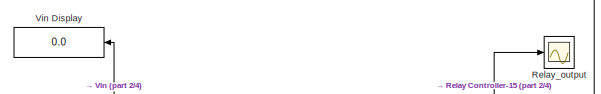
[diagram: root canvas - part 1/4, top center region]
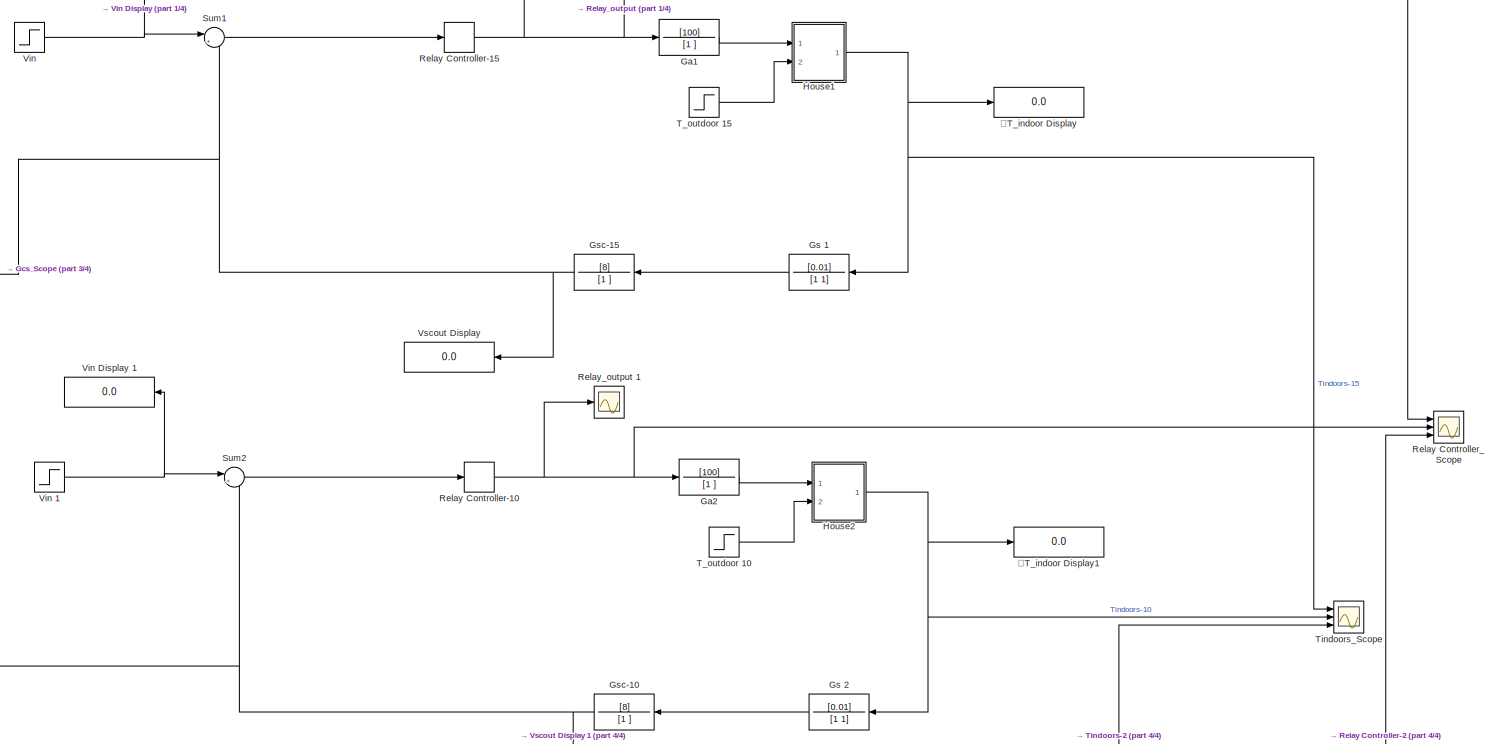
[diagram: root canvas - part 2/4, central region]
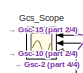
[diagram: root canvas - part 3/4, top left region]
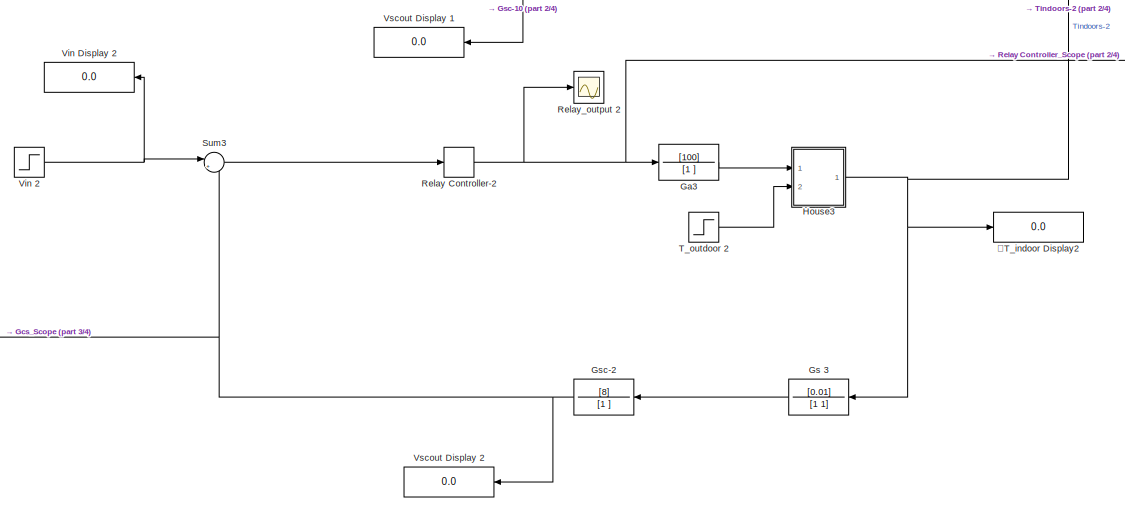
[diagram: root canvas - part 4/4, bottom center region]
MODEL slx_197cc230501b
KIND model
CONFIG AbsTol = auto
CONFIG EnableMultiTasking = off
CONFIG FixedStep = auto
CONFIG MaxStep = auto
CONFIG MinStep = auto
CONFIG RelTol = 1e-3
CONFIG SampleTimeConstraint = Unconstrained
CONFIG Solver = VariableStepAuto
CONFIG SolverName = VariableStepAuto
CONFIG StartTime = 0.0
CONFIG StopTime = 40
BLOCK [TransferFcn] Ga1
  Denominator = [1 ]
  Numerator = [100]
BLOCK [TransferFcn] Ga2
  Denominator = [1 ]
  Numerator = [100]
BLOCK [TransferFcn] Ga3
  Denominator = [1 ]
  Numerator = [100]
BLOCK [Scope] Gcs_Scope 
  NumInputPorts = 3
  Ports = [3]
  ScopeSpecificationString = Simulink.scopes.TimeScopeBlockCfg('CurrentConfiguration', extmgr.ConfigurationSet(extmgr.Configuration('Core','General UI',true),extmgr.Configuration('Core','Source UI',true),extmgr.Configuration('Sources','WiredSimulink',true,'DataLoggingVariableName','ScopeData4'),extmgr.Configuration('Visuals','Time Domain',true,'SerializedDisplays',{struct('MinYLimReal','-0.30216','MaxYLimReal','2.71947','YLab...<+1409ch>
BLOCK [TransferFcn] Gs 1
  Denominator = [1 1]
  Numerator = [0.01]
BLOCK [TransferFcn] Gs 2
  Denominator = [1 1]
  Numerator = [0.01]
BLOCK [TransferFcn] Gs 3
  Denominator = [1 1]
  Numerator = [0.01]
BLOCK [TransferFcn] Gsc-10
  Denominator = [1 ]
  Numerator = [8]
BLOCK [TransferFcn] Gsc-15
  Denominator = [1 ]
  Numerator = [8]
BLOCK [TransferFcn] Gsc-2
  Denominator = [1 ]
  Numerator = [8]
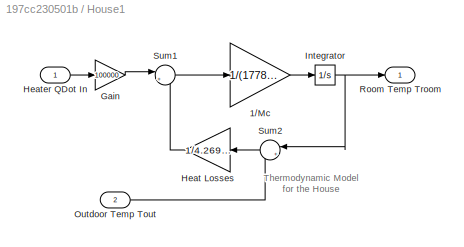
BLOCK [SubSystem] House1
  Ports = [2, 1]
  RequestExecContextInheritance = off
  Variant = off
BLOCK [Gain] House1/1//Mc
  Gain = 1/(1778.369114457651*1005.4)
BLOCK [Gain] House1/Gain
  Gain = 100000
  OutDataTypeStr = Inherit: Inherit via internal rule
  ParamDataTypeStr = Inherit: Inherit via internal rule
  SaturateOnIntegerOverflow = off
BLOCK [Gain] House1/Heat Losses
  Gain = 1/4.269756377514351e-07
BLOCK [Inport] House1/Heater QDot In
  IconDisplay = Port number
BLOCK [Integrator] House1/Integrator
  InitialCondition = 20
  Ports = [1, 1]
BLOCK [Inport] House1/Outdoor Temp Tout
  IconDisplay = Port number
  Port = 2
BLOCK [Outport] House1/Room Temp Troom
  IconDisplay = Port number
  InitialOutput = 0
BLOCK [Sum] House1/Sum1
  IconShape = round
  Inputs = |+-
  Ports = [2, 1]
BLOCK [Sum] House1/Sum2
  IconShape = round
  Inputs = |+-
  Ports = [2, 1]
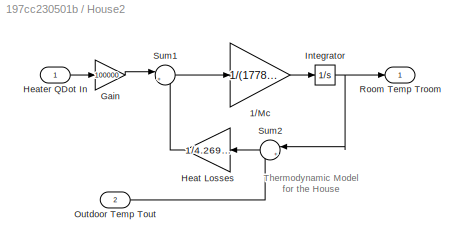
BLOCK [SubSystem] House2
  Ports = [2, 1]
  RequestExecContextInheritance = off
  Variant = off
BLOCK [Gain] House2/1//Mc
  Gain = 1/(1778.369114457651*1005.4)
BLOCK [Gain] House2/Gain
  Gain = 100000
  OutDataTypeStr = Inherit: Inherit via internal rule
  ParamDataTypeStr = Inherit: Inherit via internal rule
  SaturateOnIntegerOverflow = off
BLOCK [Gain] House2/Heat Losses
  Gain = 1/4.269756377514351e-07
BLOCK [Inport] House2/Heater QDot In
  IconDisplay = Port number
BLOCK [Integrator] House2/Integrator
  InitialCondition = 20
  Ports = [1, 1]
BLOCK [Inport] House2/Outdoor Temp Tout
  IconDisplay = Port number
  Port = 2
BLOCK [Outport] House2/Room Temp Troom
  IconDisplay = Port number
  InitialOutput = 0
BLOCK [Sum] House2/Sum1
  IconShape = round
  Inputs = |+-
  Ports = [2, 1]
BLOCK [Sum] House2/Sum2
  IconShape = round
  Inputs = |+-
  Ports = [2, 1]
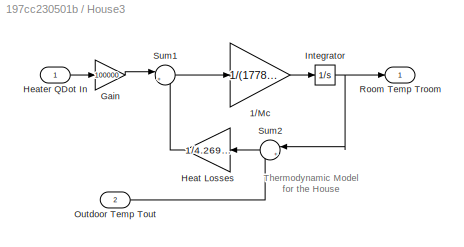
BLOCK [SubSystem] House3
  Ports = [2, 1]
  RequestExecContextInheritance = off
  Variant = off
BLOCK [Gain] House3/1//Mc
  Gain = 1/(1778.369114457651*1005.4)
BLOCK [Gain] House3/Gain
  Gain = 100000
  OutDataTypeStr = Inherit: Inherit via internal rule
  ParamDataTypeStr = Inherit: Inherit via internal rule
  SaturateOnIntegerOverflow = off
BLOCK [Gain] House3/Heat Losses
  Gain = 1/4.269756377514351e-07
BLOCK [Inport] House3/Heater QDot In
  IconDisplay = Port number
BLOCK [Integrator] House3/Integrator
  InitialCondition = 20
  Ports = [1, 1]
BLOCK [Inport] House3/Outdoor Temp Tout
  IconDisplay = Port number
  Port = 2
BLOCK [Outport] House3/Room Temp Troom
  IconDisplay = Port number
  InitialOutput = 0
BLOCK [Sum] House3/Sum1
  IconShape = round
  Inputs = |+-
  Ports = [2, 1]
BLOCK [Sum] House3/Sum2
  IconShape = round
  Inputs = |+-
  Ports = [2, 1]
BLOCK [Relay] Relay Controller-10
  InputProcessing = Elements as channels (sample based)
  OffSwitchValue = -0.001
  OnOutputValue = 10
  OnSwitchValue = 0.001
BLOCK [Relay] Relay Controller-15
  InputProcessing = Elements as channels (sample based)
  OffSwitchValue = -0.001
  OnOutputValue = 10
  OnSwitchValue = 0.001
BLOCK [Relay] Relay Controller-2
  InputProcessing = Elements as channels (sample based)
  OffSwitchValue = -0.001
  OnOutputValue = 10
  OnSwitchValue = 0.001
BLOCK [Scope] Relay Controller_Scope 
  NumInputPorts = 3
  Ports = [3]
  ScopeSpecificationString = Simulink.scopes.TimeScopeBlockCfg('CurrentConfiguration', extmgr.ConfigurationSet(extmgr.Configuration('Core','General UI',true),extmgr.Configuration('Core','Source UI',true),extmgr.Configuration('Sources','WiredSimulink',true,'DataLoggingVariableName','ScopeData2'),extmgr.Configuration('Visuals','Time Domain',true,'SerializedDisplays',{struct('MinYLimReal','-1.25','MaxYLimReal','11.25','YLabelRea...<+1434ch>
BLOCK [Scope] Relay_output 
  NumInputPorts = 1
  Ports = [1]
  ScopeSpecificationString = Simulink.scopes.TimeScopeBlockCfg('CurrentConfiguration', extmgr.ConfigurationSet(extmgr.Configuration('Core','General UI',true),extmgr.Configuration('Core','Source UI',true),extmgr.Configuration('Sources','WiredSimulink',true,'DataLoggingVariableName','ScopeData1'),extmgr.Configuration('Visuals','Time Domain',true,'SerializedDisplays',{struct('MinYLimReal','-1.25','MaxYLimReal','11.25','YLabelRea...<+1372ch>
BLOCK [Scope] Relay_output 1
  NumInputPorts = 1
  Ports = [1]
  ScopeSpecificationString = Simulink.scopes.TimeScopeBlockCfg('CurrentConfiguration', extmgr.ConfigurationSet(extmgr.Configuration('Core','General UI',true),extmgr.Configuration('Core','Source UI',true),extmgr.Configuration('Sources','WiredSimulink',true,'DataLoggingVariableName','ScopeData3'),extmgr.Configuration('Visuals','Time Domain',true,'SerializedDisplays',{struct('MinYLimReal','-1.25','MaxYLimReal','11.25','YLabelRea...<+1372ch>
BLOCK [Scope] Relay_output 2
  NumInputPorts = 1
  Ports = [1]
  ScopeSpecificationString = Simulink.scopes.TimeScopeBlockCfg('CurrentConfiguration', extmgr.ConfigurationSet(extmgr.Configuration('Core','General UI',true),extmgr.Configuration('Core','Source UI',true),extmgr.Configuration('Sources','WiredSimulink',true,'DataLoggingVariableName','ScopeData6'),extmgr.Configuration('Visuals','Time Domain',true,'SerializedDisplays',{struct('MinYLimReal','-1.25','MaxYLimReal','11.25','YLabelRea...<+1372ch>
BLOCK [Sum] Sum1
  IconShape = round
  InputSameDT = off
  Inputs = |+-
  OutDataTypeStr = Inherit: Inherit via internal rule
  Ports = [2, 1]
  SaturateOnIntegerOverflow = off
BLOCK [Sum] Sum2
  IconShape = round
  InputSameDT = off
  Inputs = |+-
  OutDataTypeStr = Inherit: Inherit via internal rule
  Ports = [2, 1]
  SaturateOnIntegerOverflow = off
BLOCK [Sum] Sum3
  IconShape = round
  InputSameDT = off
  Inputs = |+-
  OutDataTypeStr = Inherit: Inherit via internal rule
  Ports = [2, 1]
  SaturateOnIntegerOverflow = off
BLOCK [Step] T_outdoor 10
  After = 10
  SampleTime = 0
  Time = 0
BLOCK [Step] T_outdoor 15 
  After = 15
  SampleTime = 0
  Time = 0
BLOCK [Step] T_outdoor 2
  After = 2
  SampleTime = 0
  Time = 0
BLOCK [Scope] Tindoors_Scope 
  NumInputPorts = 3
  Ports = [3]
  ScopeSpecificationString = Simulink.scopes.TimeScopeBlockCfg('CurrentConfiguration', extmgr.ConfigurationSet(extmgr.Configuration('Core','General UI',true),extmgr.Configuration('Core','Source UI',true),extmgr.Configuration('Sources','WiredSimulink',true),extmgr.Configuration('Visuals','Time Domain',true,'SerializedDisplays',{struct('MinYLimReal','13.36125','MaxYLimReal','52.09331','YLabelReal','','MinYLimMag','13.36125','Ma...<+1391ch>
BLOCK [Step] Vin 
  After = 2.061
  SampleTime = 0
  Time = 0
BLOCK [Step] Vin 1
  After = 2.061
  SampleTime = 0
  Time = 0
BLOCK [Step] Vin 2
  After = 2.061
  SampleTime = 0
  Time = 0
BLOCK [Display] Vin Display 
  Decimation = 1
  Ports = [1]
BLOCK [Display] Vin Display 1
  Decimation = 1
  Ports = [1]
BLOCK [Display] Vin Display 2
  Decimation = 1
  Ports = [1]
BLOCK [Display] Vscout Display 
  Decimation = 1
  Ports = [1]
BLOCK [Display] Vscout Display 1
  Decimation = 1
  Ports = [1]
BLOCK [Display] Vscout Display 2
  Decimation = 1
  Ports = [1]
BLOCK [Display] ْT_indoor Display
  Decimation = 1
  Ports = [1]
BLOCK [Display] ْT_indoor Display1
  Decimation = 1
  Ports = [1]
BLOCK [Display] ْT_indoor Display2
  Decimation = 1
  Ports = [1]
ANNOTATION House1: Thermodynamic Model for the House
ANNOTATION House2: Thermodynamic Model for the House
ANNOTATION House3: Thermodynamic Model for the House
LINE Ga1:1 -> House1:1
LINE Ga2:1 -> House2:1
LINE Ga3:1 -> House3:1
LINE Gs 1:1 -> Gsc-15:1
LINE Gs 2:1 -> Gsc-10:1
LINE Gs 3:1 -> Gsc-2:1
NET Gsc-10:1 -> Gcs_Scope :2, Sum2:2, Vscout Display 1:1
NET Gsc-15:1 -> Gcs_Scope :1, Sum1:2, Vscout Display :1
NET Gsc-2:1 -> Gcs_Scope :3, Sum3:2, Vscout Display 2:1
LINE House1/1//Mc:1 -> House1/Integrator:1
LINE House1/Gain:1 -> House1/Sum1:1
LINE House1/Heat Losses:1 -> House1/Sum1:2
LINE House1/Heater QDot In:1 -> House1/Gain:1
NET House1/Integrator:1 -> House1/Room Temp Troom:1, House1/Sum2:1
LINE House1/Outdoor Temp Tout:1 -> House1/Sum2:2
LINE House1/Sum1:1 -> House1/1//Mc:1
LINE House1/Sum2:1 -> House1/Heat Losses:1
NET House1:1 -> Gs 1:1, Tindoors_Scope :1, ْT_indoor Display:1
LINE House2/1//Mc:1 -> House2/Integrator:1
LINE House2/Gain:1 -> House2/Sum1:1
LINE House2/Heat Losses:1 -> House2/Sum1:2
LINE House2/Heater QDot In:1 -> House2/Gain:1
NET House2/Integrator:1 -> House2/Room Temp Troom:1, House2/Sum2:1
LINE House2/Outdoor Temp Tout:1 -> House2/Sum2:2
LINE House2/Sum1:1 -> House2/1//Mc:1
LINE House2/Sum2:1 -> House2/Heat Losses:1
NET House2:1 -> Gs 2:1, Tindoors_Scope :2, ْT_indoor Display1:1
LINE House3/1//Mc:1 -> House3/Integrator:1
LINE House3/Gain:1 -> House3/Sum1:1
LINE House3/Heat Losses:1 -> House3/Sum1:2
LINE House3/Heater QDot In:1 -> House3/Gain:1
NET House3/Integrator:1 -> House3/Room Temp Troom:1, House3/Sum2:1
LINE House3/Outdoor Temp Tout:1 -> House3/Sum2:2
LINE House3/Sum1:1 -> House3/1//Mc:1
LINE House3/Sum2:1 -> House3/Heat Losses:1
NET House3:1 -> Gs 3:1, Tindoors_Scope :3, ْT_indoor Display2:1
NET Relay Controller-10:1 -> Ga2:1, Relay Controller_Scope :2, Relay_output 1:1
NET Relay Controller-15:1 -> Ga1:1, Relay Controller_Scope :1, Relay_output :1
NET Relay Controller-2:1 -> Ga3:1, Relay Controller_Scope :3, Relay_output 2:1
LINE Sum1:1 -> Relay Controller-15:1
LINE Sum2:1 -> Relay Controller-10:1
LINE Sum3:1 -> Relay Controller-2:1
LINE T_outdoor 10:1 -> House2:2
LINE T_outdoor 15 :1 -> House1:2
LINE T_outdoor 2:1 -> House3:2
NET Vin 1:1 -> Sum2:1, Vin Display 1:1
NET Vin 2:1 -> Sum3:1, Vin Display 2:1
NET Vin :1 -> Sum1:1, Vin Display :1
note: NET lines group one-source signal fan-out (src -> all destinations, sorted); 1:1 wires keep LINE
